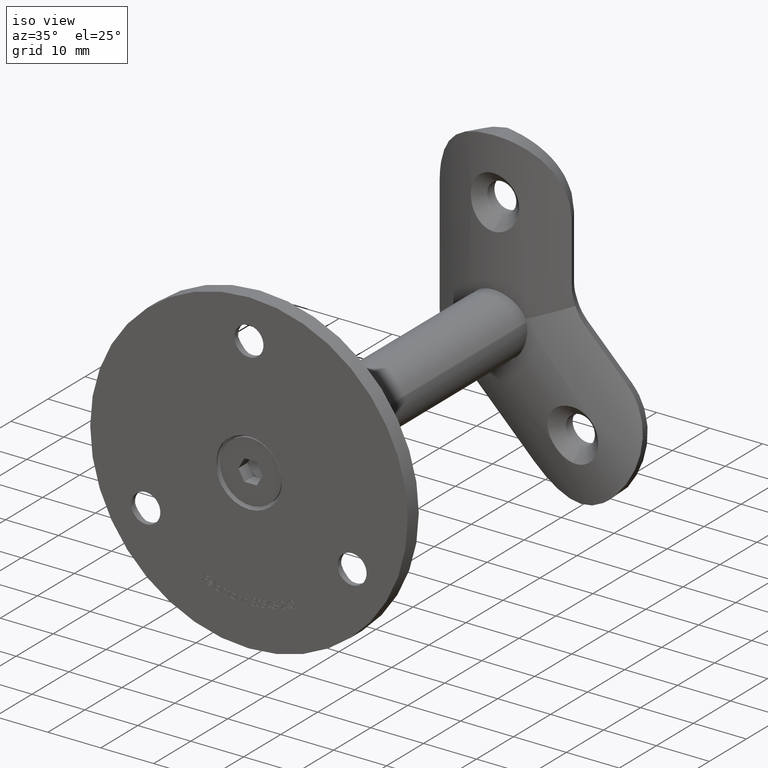
[diagram: clean part render]
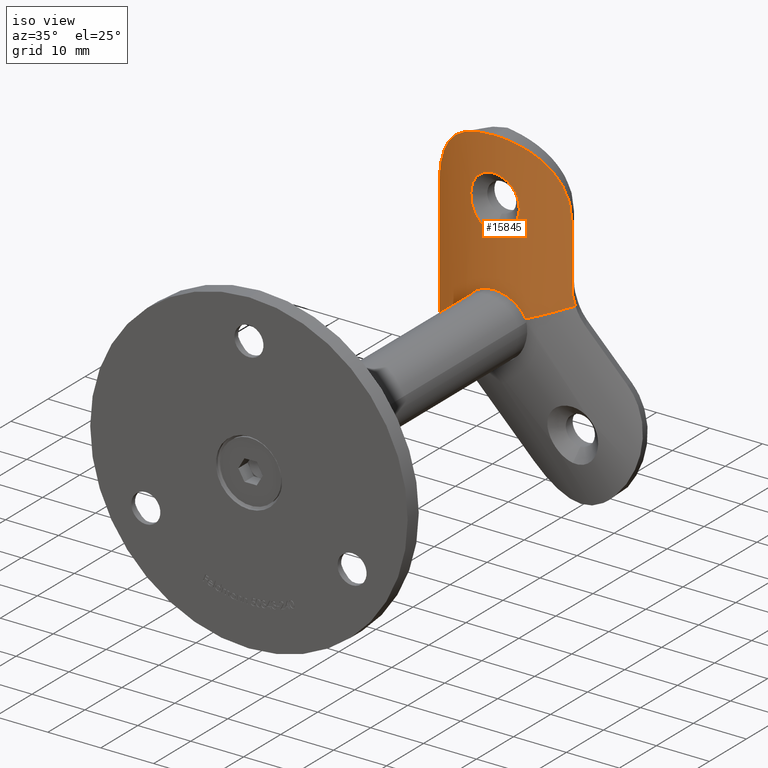
[diagram: same view with one face highlighted and labeled with its STEP entity id]
A machine part, iso view. The second image highlights one B-rep face of the part: STEP entity #15845.
In plain terms, the highlighted cylindrical surface (partial cylindrical patch) has radius 25.2 mm, axis along (0, 0, 1).
Its self-contained STEP definition (entity closure, byte-faithful):
#52 = CARTESIAN_POINT ( 'NONE',  ( 5.635665148318850000, 0.6382557961364526700, -30.16563106257295200 ) ) ;
#132 = CARTESIAN_POINT ( 'NONE',  ( 12.54201311457441800, 3.342578494631494500, -24.88051984420207700 ) ) ;
#320 = CARTESIAN_POINT ( 'NONE',  ( -3.520744840741779800, 0.2462778248378499600, -14.70954173135167200 ) ) ;
#453 = CARTESIAN_POINT ( 'NONE',  ( -2.876931050095497000, 0.1634943336296174100, -15.40049076243290700 ) ) ;
#508 = CARTESIAN_POINT ( 'NONE',  ( 4.580577123825221100, 0.4197999741863477900, -11.19258483337963200 ) ) ;
#520 = CARTESIAN_POINT ( 'NONE',  ( -4.143819402203336100, 0.3427941176002003400, -9.351696232464494300 ) ) ;
#847 = CARTESIAN_POINT ( 'NONE',  ( -1.085196124922591900, 0.02290744339777387900, -6.640102659356252900 ) ) ;
#856 = CARTESIAN_POINT ( 'NONE',  ( -3.100121005353015500, 0.1904473954815733800, -27.24064383884313400 ) ) ;
#885 = CARTESIAN_POINT ( 'NONE',  ( 12.42593213786106600, 3.275942108313401000, -10.81716259696245300 ) ) ;
#943 = CARTESIAN_POINT ( 'NONE',  ( 12.50000000000000200, 3.318729470161014400, -11.65131462300098000 ) ) ;
#957 = CARTESIAN_POINT ( 'NONE',  ( -12.50000000000000000, 3.318729470161013500, -12.50000000000001800 ) ) ;
#992 = EDGE_CURVE ( 'NONE', #6685, #10526, #17532, .T. ) ;
#1002 = ORIENTED_EDGE ( 'NONE', *, *, #12608, .T. ) ;
#1007 = CARTESIAN_POINT ( 'NONE',  ( 12.11489000487418000, 3.102822514503106100, -9.180283859318134200 ) ) ;
#1015 = CARTESIAN_POINT ( 'NONE',  ( -11.76157500785650900, 2.912500167473663900, -7.968663745774179600 ) ) ;
#1105 = CARTESIAN_POINT ( 'NONE',  ( -3.311148534074731300, 0.2176370511976729900, -27.37084989584277700 ) ) ;
#1135 = CARTESIAN_POINT ( 'NONE',  ( 11.89376168094891100, 2.983018977985725700, -8.374334854254618300 ) ) ;
#1145 = CARTESIAN_POINT ( 'NONE',  ( -2.916408096065322900, 0.1659191428603351000, -0.2704965400152910000 ) ) ;
#1228 = CARTESIAN_POINT ( 'NONE',  ( -6.092324201610737500, 0.7475231649378983900, -32.89484127377284000 ) ) ;
#1253 = CARTESIAN_POINT ( 'NONE',  ( 7.817128580942958000, 1.232221269887715300, -2.390605118497026300 ) ) ;
#1290 = CARTESIAN_POINT ( 'NONE',  ( -5.635665148318850900, 0.6382557961364526700, -34.83436893742705100 ) ) ;
#1322 = CARTESIAN_POINT ( 'NONE',  ( 10.07048743595559900, 2.098031901673115900, -4.710125348738568400 ) ) ;
#1385 = EDGE_CURVE ( 'NONE', #3648, #14641, #7338, .T. ) ;
#1823 = CARTESIAN_POINT ( 'NONE',  ( 2.109871521874010700, 0.08685697626282486200, -7.051801675040414900 ) ) ;
#1856 = CARTESIAN_POINT ( 'NONE',  ( 8.233888600642865500, 1.234415304853414100, -29.08941167054449300 ) ) ;
#1967 = CARTESIAN_POINT ( 'NONE',  ( -4.446939123987936800, 0.3954095641891077800, -12.73505331806743400 ) ) ;
#2025 = CARTESIAN_POINT ( 'NONE',  ( 4.579934869850817800, 0.4196812632571155200, -11.81855127310733300 ) ) ;
#2040 = CARTESIAN_POINT ( 'NONE',  ( -3.691772472108291000, 0.2713639326261404500, -8.528655425503567100 ) ) ;
#2085 = CARTESIAN_POINT ( 'NONE',  ( 3.511680899609918700, 0.2450151918517536900, -14.72098898458173400 ) ) ;
#2219 = CARTESIAN_POINT ( 'NONE',  ( 1.534176133914123300, 0.04630459537214132900, -16.21275156954238700 ) ) ;
#2249 = CARTESIAN_POINT ( 'NONE',  ( -12.00344084762930000, 3.042441293827857800, -37.47198799423127000 ) ) ;
#2312 = CARTESIAN_POINT ( 'NONE',  ( 12.50000000000000000, 3.318729470161013500, -23.72569594041010900 ) ) ;
#2379 = LINE ( 'NONE', #11363, #6150 ) ;
#2462 = CARTESIAN_POINT ( 'NONE',  ( -7.453320890116474500, 1.124781431170145000, -2.155752778854338500 ) ) ;
#2525 = CARTESIAN_POINT ( 'NONE',  ( -9.558277226690501400, 1.881457439786637500, -4.063074653246610900 ) ) ;
#2608 = CARTESIAN_POINT ( 'NONE',  ( -3.914547124021531900, 0.3051962721563678000, -27.81509600416223500 ) ) ;
#2639 = EDGE_LOOP ( 'NONE', ( #13903, #8296, #13031, #18285, #6737, #15644, #3350, #5086, #17451, #14998 ) ) ;
#2646 = CARTESIAN_POINT ( 'NONE',  ( -4.132401606780078400, 0.3377746668264500800, -0.5710017413947515700 ) ) ;
#2720 = VERTEX_POINT ( 'NONE', #17647 ) ;
#2863 = CARTESIAN_POINT ( 'NONE',  ( 7.452247982321925200E-016, -2.844418877042948600E-015, -26.39999999999999900 ) ) ;
#2952 = FACE_BOUND ( 'NONE', #17972, .T. ) ;
#3068 = VERTEX_POINT ( 'NONE', #15498 ) ;
#3092 = CARTESIAN_POINT ( 'NONE',  ( 10.70593280715455500, 2.231996734658619400, -28.06545743342151400 ) ) ;
#3128 = CARTESIAN_POINT ( 'NONE',  ( 2.345598967563117500, 0.1079385583510384800, -26.86110811641933800 ) ) ;
#3146 = CARTESIAN_POINT ( 'NONE',  ( 12.50000000000000200, 3.318729470161013900, -24.30715221525655100 ) ) ;
#3182 = DIRECTION ( 'NONE',  ( -0.0000000000000000000, -0.0000000000000000000, 1.000000000000000000 ) ) ;
#3183 = VERTEX_POINT ( 'NONE', #2312 ) ;
#3187 = FACE_OUTER_BOUND ( 'NONE', #2639, .T. ) ;
#3215 = CARTESIAN_POINT ( 'NONE',  ( 12.82785849635463600, 3.508482303909128900, -26.56954736917000700 ) ) ;
#3273 = CARTESIAN_POINT ( 'NONE',  ( -3.506772870722872700, 0.2443311937236158400, -8.272810619512702200 ) ) ;
#3350 = ORIENTED_EDGE ( 'NONE', *, *, #3647, .T. ) ;
#3461 = CARTESIAN_POINT ( 'NONE',  ( 4.446059415248537800, 0.3952511076181891600, -10.26096141582420500 ) ) ;
#3528 = CARTESIAN_POINT ( 'NONE',  ( 4.442457757354808300, 0.3946040462538625300, -12.75403916577031500 ) ) ;
#3647 = EDGE_CURVE ( 'NONE', #2720, #3183, #6513, .T. ) ;
#3648 = VERTEX_POINT ( 'NONE', #7754 ) ;
#3661 = CARTESIAN_POINT ( 'NONE',  ( 0.6288438543881429400, 0.007364689150935332600, -16.45535869399840900 ) ) ;
#3751 = DIRECTION ( 'NONE',  ( -0.0000000000000000000, -0.0000000000000000000, 1.000000000000000000 ) ) ;
#3846 = CARTESIAN_POINT ( 'NONE',  ( -12.50000000000000000, 3.318729470161013500, -34.66206479569979800 ) ) ;
#3864 = CARTESIAN_POINT ( 'NONE',  ( -5.656666835896313500, 0.6429325618814399900, -30.20352090361686900 ) ) ;
#3968 = CARTESIAN_POINT ( 'NONE',  ( -12.49999999999999800, 3.318729470161013900, -11.65131217574670200 ) ) ;
#3984 = CARTESIAN_POINT ( 'NONE',  ( 6.123233991512032600E-016, -3.201811514472621600E-015, -6.500000000000004400 ) ) ;
#4023 = CARTESIAN_POINT ( 'NONE',  ( 6.123233991512032600E-016, -3.201811514472621600E-015, -6.500000000000004400 ) ) ;
#4118 = CARTESIAN_POINT ( 'NONE',  ( -4.467781865359187400, 0.3963983958027402200, -28.31706517512223400 ) ) ;
#4152 = CARTESIAN_POINT ( 'NONE',  ( 3.336452648389693900, 0.2184905582897320700, -0.3602012633736843000 ) ) ;
#4159 = CARTESIAN_POINT ( 'NONE',  ( -10.95907355803569900, 2.502603160104170100, -6.077649395843182300 ) ) ;
#4224 = CARTESIAN_POINT ( 'NONE',  ( -9.290227986484300300, 1.773002913500467200, -3.759946391623413000 ) ) ;
#4313 = CARTESIAN_POINT ( 'NONE',  ( -6.104215035870024200, 0.7504888322355425200, -32.39572821635362500 ) ) ;
#4451 = CARTESIAN_POINT ( 'NONE',  ( 5.079101427205057600, 0.5166544394542881300, -29.10843895902831200 ) ) ;
#4607 = CARTESIAN_POINT ( 'NONE',  ( 12.70593178983226000, 3.437457290527091500, -26.01171874692852300 ) ) ;
#4626 = EDGE_CURVE ( 'NONE', #15193, #3068, #19100, .T. ) ;
#4657 = CARTESIAN_POINT ( 'NONE',  ( 2.064561520201300600, 0.08303970297215769500, -26.75204197358564800 ) ) ;
#4797 = CARTESIAN_POINT ( 'NONE',  ( -4.581024645818930100, 0.4198826913978697100, -11.79924024913036900 ) ) ;
#4970 = CARTESIAN_POINT ( 'NONE',  ( 3.516036829971829600, 0.2456316884475114600, -8.284682730837406700 ) ) ;
#5080 = CYLINDRICAL_SURFACE ( 'NONE', #17189, 25.20000000000000300 ) ;
#5086 = ORIENTED_EDGE ( 'NONE', *, *, #7140, .T. ) ;
#5235 = CARTESIAN_POINT ( 'NONE',  ( 2.372116897686227700, 0.1106584373789110400, -15.78662136201503000 ) ) ;
#5270 = CARTESIAN_POINT ( 'NONE',  ( -9.996264048482657900, 1.955090999565554500, -36.64058814194411400 ) ) ;
#5363 = CARTESIAN_POINT ( 'NONE',  ( -12.17039824450057300, 3.132887324638117500, -36.92277621301490600 ) ) ;
#5508 = CARTESIAN_POINT ( 'NONE',  ( -0.2516522207129910900, -5.322013886717174200E-015, -26.39999999999999500 ) ) ;
#5593 = CARTESIAN_POINT ( 'NONE',  ( 4.541713459850109700, 0.4095295967373566700, -0.7010748751101031400 ) ) ;
#5730 = CARTESIAN_POINT ( 'NONE',  ( -12.20537942593692200, 3.152873191993741400, -9.582092618962015300 ) ) ;
#6150 = VECTOR ( 'NONE', #3182, 1000.000000000000000 ) ;
#6241 = CARTESIAN_POINT ( 'NONE',  ( -4.366981934856971400, 0.3810318345296347400, -13.03690783631459000 ) ) ;
#6328 = CARTESIAN_POINT ( 'NONE',  ( 5.635665148318850000, 0.6382557961364526700, -30.16563106257295200 ) ) ;
#6361 = CARTESIAN_POINT ( 'NONE',  ( 1.242031994499226400, 0.02877491513886639600, -6.676278470152341900 ) ) ;
#6445 = CARTESIAN_POINT ( 'NONE',  ( -2.107101425442147400, 0.08664828582114228500, -15.94957611715271100 ) ) ;
#6510 = CARTESIAN_POINT ( 'NONE',  ( -0.6275273340601597000, 0.005950327279558812800, -16.46440452191917500 ) ) ;
#6513 = B_SPLINE_CURVE_WITH_KNOTS ( 'NONE', 3,
 ( #13240, #3215, #4607, #132, #3146, #13699 ),
 .UNSPECIFIED., .F., .F.,
 ( 4, 2, 4 ),
 ( 3.496446946337351300E-018, 0.001720416399516249700, 0.003440832799032496000 ),
 .UNSPECIFIED. ) ;
#6565 = CARTESIAN_POINT ( 'NONE',  ( 4.010664839313585100, 0.3206846524777262100, -13.93054130894079500 ) ) ;
#6685 = VERTEX_POINT ( 'NONE', #11071 ) ;
#6692 = CARTESIAN_POINT ( 'NONE',  ( 2.636376477397085100E-018, -2.985933416749475100E-015, -16.49999999999999600 ) ) ;
#6737 = ORIENTED_EDGE ( 'NONE', *, *, #16055, .F. ) ;
#6934 = DIRECTION ( 'NONE',  ( -0.0000000000000000000, -0.0000000000000000000, 1.000000000000000000 ) ) ;
#7024 = CARTESIAN_POINT ( 'NONE',  ( -0.9998213134970611600, 0.01862153161233626200, -26.47731666575877100 ) ) ;
#7027 = CARTESIAN_POINT ( 'NONE',  ( 2.426184253501165400E-015, 25.19999999999999900, -58.40618737384683400 ) ) ;
#7051 = CARTESIAN_POINT ( 'NONE',  ( 9.295514644333644900, 1.775107711457989400, -3.765742000863847600 ) ) ;
#7140 = EDGE_CURVE ( 'NONE', #3183, #3648, #2379, .T. ) ;
#7176 = CARTESIAN_POINT ( 'NONE',  ( 2.353543754483576900E-016, 0.0000000000000000000, 0.0000000000000000000 ) ) ;
#7338 = B_SPLINE_CURVE_WITH_KNOTS ( 'NONE', 3,
 ( #8254, #943, #885, #17452, #1007, #1135, #17518, #11568, #11826, #12992, #1322, #10069, #7051, #10198, #1253, #19103, #16165, #5593, #13119, #4152, #8820, #16225, #19168, #7176 ),
 .UNSPECIFIED., .F., .F.,
 ( 4, 2, 2, 2, 2, 2, 2, 2, 2, 2, 2, 4 ),
 ( 1.748223473168675600E-017, 0.002510071529770218600, 0.003765107294655316800, 0.005020143059540415500, 0.007530214589310611100, 0.008785250354195712300, 0.01004028611908081400, 0.01255035764885101300, 0.01506042917862121200, 0.01631546494350631300, 0.01757050070839141400, 0.02008057223816161300 ),
 .UNSPECIFIED. ) ;
#7478 = CARTESIAN_POINT ( 'NONE',  ( 3.143541254798092300, 0.1955773873269544300, -27.26380823111926300 ) ) ;
#7523 = EDGE_CURVE ( 'NONE', #14048, #2720, #10950, .T. ) ;
#7600 = CARTESIAN_POINT ( 'NONE',  ( 5.521370367631699400, 0.6120309846244096400, -29.88969905292957200 ) ) ;
#7712 = CARTESIAN_POINT ( 'NONE',  ( 5.635665148318850000, 0.6382557961364526700, -30.16563106257295200 ) ) ;
#7748 = CARTESIAN_POINT ( 'NONE',  ( -4.579459079541297100, 0.4195933210834877400, -11.17360016113208800 ) ) ;
#7754 = CARTESIAN_POINT ( 'NONE',  ( 12.50000000000000000, 3.318729470161013500, -12.50000000000001800 ) ) ;
#7815 = CARTESIAN_POINT ( 'NONE',  ( -3.105360998503838400, 0.1911889987196645800, -15.18514913609685200 ) ) ;
#7927 = CARTESIAN_POINT ( 'NONE',  ( 0.3136521761264384800, -5.243698632135616700E-015, -6.499999999999997300 ) ) ;
#7930 = EDGE_CURVE ( 'NONE', #19361, #10333, #14139, .T. ) ;
#8008 = CARTESIAN_POINT ( 'NONE',  ( -4.554259075932573200, 0.4148895800308853900, -12.11671145761856000 ) ) ;
#8254 = CARTESIAN_POINT ( 'NONE',  ( 12.50000000000000000, 3.318729470161013500, -12.50000000000001800 ) ) ;
#8296 = ORIENTED_EDGE ( 'NONE', *, *, #16426, .T. ) ;
#8352 = CARTESIAN_POINT ( 'NONE',  ( -5.334716248579559800, 0.5708717033161387900, -29.53138462035829200 ) ) ;
#8384 = CARTESIAN_POINT ( 'NONE',  ( -0.8478801698460424200, 8.004461351553138200E-017, 0.0000000000000000000 ) ) ;
#8577 = CARTESIAN_POINT ( 'NONE',  ( -8.722036700537685800, 1.555579847960163000, -3.184195363687085700 ) ) ;
#8705 = CARTESIAN_POINT ( 'NONE',  ( -11.89084499406092900, 2.981453070570951400, -8.364683429127939700 ) ) ;
#8820 = CARTESIAN_POINT ( 'NONE',  ( 2.924802006616160200, 0.1668656466313037100, -0.2720974402485542600 ) ) ;
#8858 = CARTESIAN_POINT ( 'NONE',  ( 3.879866014261077500, 0.2994630704261139800, -27.78347287138400600 ) ) ;
#8992 = CARTESIAN_POINT ( 'NONE',  ( 1.196677446337125700, 0.02174751055778854900, -26.48803642177563600 ) ) ;
#9123 = CARTESIAN_POINT ( 'NONE',  ( 4.526458254105580000, 0.4091099976557364700, -28.39999685798055800 ) ) ;
#9127 = B_SPLINE_CURVE_WITH_KNOTS ( 'NONE', 3,
 ( #9984, #5508, #16006, #7024, #16068, #19009, #10043, #856, #1105, #11598, #2608, #4118, #15822, #17301, #8352, #12847, #3864, #18819, #11361, #9858, #4313, #1228, #16390, #11862, #16196, #1290 ),
 .UNSPECIFIED., .F., .F.,
 ( 4, 2, 2, 2, 2, 2, 2, 2, 2, 2, 2, 2, 4 ),
 ( 0.01621000710305283600, 0.01695732460670127900, 0.01770464211034972200, 0.01919927711764661200, 0.01994659462129505500, 0.02069391212494349800, 0.02218854713224038800, 0.02293586463588882800, 0.02368318213953727100, 0.02517781714683414000, 0.02592513465048258000, 0.02667245215413101300, 0.02816708716142790600 ),
 .UNSPECIFIED. ) ;
#9269 = CARTESIAN_POINT ( 'NONE',  ( -1.240064652826072400, 0.02866373981490495700, -16.32441649811534000 ) ) ;
#9318 = CARTESIAN_POINT ( 'NONE',  ( 1.540370647827714800, 0.04550201978173213500, -6.780533895811026400 ) ) ;
#9444 = CARTESIAN_POINT ( 'NONE',  ( 3.698650068046577900, 0.2723823201091884500, -8.538657644134907800 ) ) ;
#9510 = CARTESIAN_POINT ( 'NONE',  ( 4.554057407836973300, 0.4148517643294690700, -10.88105408612482500 ) ) ;
#9521 = CARTESIAN_POINT ( 'NONE',  ( -12.50000000000000000, 3.318729470161013500, -34.08103499973749700 ) ) ;
#9523 = CARTESIAN_POINT ( 'NONE',  ( -4.359078734938461400, 0.3796382761915548200, -9.936971936891014300 ) ) ;
#9713 = CARTESIAN_POINT ( 'NONE',  ( 1.237379091273920700, 0.02995864319753509600, -16.31610108667474500 ) ) ;
#9839 = CARTESIAN_POINT ( 'NONE',  ( 1.681501041465626400, 0.05576029605887737600, -16.15216525595209500 ) ) ;
#9849 = CARTESIAN_POINT ( 'NONE',  ( -1.238249759580967600, 0.03000319505332077100, -6.684178535170345500 ) ) ;
#9858 = CARTESIAN_POINT ( 'NONE',  ( -6.094874311800977800, 0.7481463099860434800, -32.14685376744815000 ) ) ;
#9899 = CARTESIAN_POINT ( 'NONE',  ( 0.1581188901261451900, -5.013776244342037000E-015, -16.49999999999999600 ) ) ;
#9957 = CARTESIAN_POINT ( 'NONE',  ( -7.787817432499702300, 1.231228431433072600, -2.397319878443243900 ) ) ;
#9984 = CARTESIAN_POINT ( 'NONE',  ( 7.452247982321925200E-016, -2.844418877042948600E-015, -26.39999999999999900 ) ) ;
#10024 = CARTESIAN_POINT ( 'NONE',  ( -12.00344084762930000, 3.042441293827857800, -37.47198799423127000 ) ) ;
#10043 = CARTESIAN_POINT ( 'NONE',  ( -2.443963947661151900, 0.1149262084690399800, -26.88899740389905800 ) ) ;
#10069 = CARTESIAN_POINT ( 'NONE',  ( 9.563864885048385400, 1.883736669989527300, -4.069526909974207700 ) ) ;
#10198 = CARTESIAN_POINT ( 'NONE',  ( 8.444955973289221900, 1.449391512206032100, -2.902564333401197200 ) ) ;
#10206 = CARTESIAN_POINT ( 'NONE',  ( -12.11344641061551300, 3.102026373778727500, -9.174062328137159400 ) ) ;
#10333 = VERTEX_POINT ( 'NONE', #11078 ) ;
#10501 = CARTESIAN_POINT ( 'NONE',  ( 4.321558359304638100, 0.3723091485169476300, -28.18454848356362100 ) ) ;
#10526 = VERTEX_POINT ( 'NONE', #4023 ) ;
#10837 = CARTESIAN_POINT ( 'NONE',  ( -3.096281249215418400, 0.1900838873627747600, -7.806200207680188200 ) ) ;
#10927 = CARTESIAN_POINT ( 'NONE',  ( -12.00344084762930000, 3.042441293827857800, -37.47198799423127000 ) ) ;
#10950 =( BOUNDED_CURVE ( )  B_SPLINE_CURVE ( 3, ( #6328, #1856, #3092, #13644 ),
 .UNSPECIFIED., .F., .F. ) 
 B_SPLINE_CURVE_WITH_KNOTS ( ( 4, 4 ),
 ( 4.937933892279138700, 5.253961654218155500 ),
 .UNSPECIFIED. ) 
 CURVE ( )  GEOMETRIC_REPRESENTATION_ITEM ( )  RATIONAL_B_SPLINE_CURVE ( ( 1.000000000000000000, 0.9916945072986413900, 0.9916945072986413900, 1.000000000000000000 ) ) 
 REPRESENTATION_ITEM ( '' )  );
#10963 = CARTESIAN_POINT ( 'NONE',  ( -4.153653337573322400, 0.3444397373693350300, -13.62583049966721100 ) ) ;
#11028 = CARTESIAN_POINT ( 'NONE',  ( -4.010965166420103100, 0.3207267268685279900, -9.069808586357012800 ) ) ;
#11071 = CARTESIAN_POINT ( 'NONE',  ( 2.636376477397085100E-018, -2.985933416749475100E-015, -16.49999999999999600 ) ) ;
#11078 = CARTESIAN_POINT ( 'NONE',  ( -12.50000000000000000, 3.318729470161013500, -12.50000000000001800 ) ) ;
#11083 = CARTESIAN_POINT ( 'NONE',  ( 3.693410336405263700, 0.2716128740405990300, -14.46872637440531900 ) ) ;
#11331 = CARTESIAN_POINT ( 'NONE',  ( -12.50000000000000000, 3.318729470161013500, -58.40618737384683400 ) ) ;
#11361 = CARTESIAN_POINT ( 'NONE',  ( -6.021113560012636000, 0.7298394260390286300, -31.40226959124754200 ) ) ;
#11363 = CARTESIAN_POINT ( 'NONE',  ( 12.50000000000000000, 3.318729470161013500, -58.40618737384683400 ) ) ;
#11463 = CARTESIAN_POINT ( 'NONE',  ( -12.29337713910773300, 3.201776704961949900, -36.36536798215657000 ) ) ;
#11568 = CARTESIAN_POINT ( 'NONE',  ( 11.32367428727380300, 2.685033447932416300, -6.815258891685196800 ) ) ;
#11598 = CARTESIAN_POINT ( 'NONE',  ( -3.717808321473821100, 0.2749109448897543700, -27.65750201957075300 ) ) ;
#11640 = CARTESIAN_POINT ( 'NONE',  ( -5.692894525373621800, 0.6387905260006590000, -1.132260018870920000 ) ) ;
#11826 = CARTESIAN_POINT ( 'NONE',  ( 10.96168210474422900, 2.503936689799164400, -6.083208287748629300 ) ) ;
#11862 = CARTESIAN_POINT ( 'NONE',  ( -5.959991287668584500, 0.7148146870861175100, -33.89356119355660000 ) ) ;
#11866 = CARTESIAN_POINT ( 'NONE',  ( 4.904633094764262700, 0.4811483753747888300, -28.86084840979755500 ) ) ;
#11930 = CARTESIAN_POINT ( 'NONE',  ( 5.387315763708680400, 0.5820868424790290900, -29.62305953058299600 ) ) ;
#12323 = CARTESIAN_POINT ( 'NONE',  ( 0.6318291017219829200, 0.006072006645742310800, -6.536335746895499500 ) ) ;
#12453 = CARTESIAN_POINT ( 'NONE',  ( 4.018167344994403800, 0.3218877985429419200, -9.083751481257063900 ) ) ;
#12515 = CARTESIAN_POINT ( 'NONE',  ( 4.552013918938960100, 0.4144746146103833700, -12.13607044124458100 ) ) ;
#12528 = CARTESIAN_POINT ( 'NONE',  ( -1.541805822372429400, 0.04561379116459162600, -16.21872403141027200 ) ) ;
#12551 = CARTESIAN_POINT ( 'NONE',  ( -5.635665148318850900, 0.6382557961364526700, -34.83436893742705100 ) ) ;
#12581 = CARTESIAN_POINT ( 'NONE',  ( 2.867409036279082700, 0.1624289508582798200, -15.40851115333669500 ) ) ;
#12608 = EDGE_CURVE ( 'NONE', #10526, #6685, #16924, .T. ) ;
#12690 = EDGE_CURVE ( 'NONE', #14641, #10333, #13425, .T. ) ;
#12791 = DIRECTION ( 'NONE',  ( 1.000000000000000000, 0.0000000000000000000, 0.0000000000000000000 ) ) ;
#12847 = CARTESIAN_POINT ( 'NONE',  ( -5.558710979782108400, 0.6204578897282488900, -29.97559770077076300 ) ) ;
#12942 = CARTESIAN_POINT ( 'NONE',  ( -3.324103600918450600, 0.2168591484662161200, -0.3573870589013311000 ) ) ;
#12992 = CARTESIAN_POINT ( 'NONE',  ( 10.30840557189280900, 2.203604289978435400, -5.047045322774975400 ) ) ;
#13031 = ORIENTED_EDGE ( 'NONE', *, *, #4626, .T. ) ;
#13119 = CARTESIAN_POINT ( 'NONE',  ( 4.146472128489391700, 0.3401025917469536800, -0.5751845204073293700 ) ) ;
#13132 = CARTESIAN_POINT ( 'NONE',  ( -8.421896575752356300, 1.446605107155329200, -2.911573044353796800 ) ) ;
#13240 = CARTESIAN_POINT ( 'NONE',  ( 12.99020313251005600, 3.606143869699276900, -27.11928168453285800 ) ) ;
#13425 = B_SPLINE_CURVE_WITH_KNOTS ( 'NONE', 3,
 ( #15861, #8384, #16110, #1145, #12942, #2646, #14522, #11640, #18984, #2462, #9957, #13132, #8577, #4224, #2525, #15986, #17465, #4159, #17654, #1015, #8705, #10206, #5730, #14705, #3968, #957 ),
 .UNSPECIFIED., .F., .F.,
 ( 4, 2, 2, 2, 2, 2, 2, 2, 2, 2, 2, 2, 4 ),
 ( 2.323517928748123800E-019, 0.002511189484768549100, 0.003766784227152823000, 0.005022378969537098300, 0.007533568454305646100, 0.008789163196689922200, 0.01004475793907419700, 0.01130035268145847100, 0.01255594742384274500, 0.01506713690861129600, 0.01632273165099557000, 0.01757832639337984400, 0.02008951587814839300 ),
 .UNSPECIFIED. ) ;
#13644 = CARTESIAN_POINT ( 'NONE',  ( 12.99020313251005600, 3.606143869699276900, -27.11928168453285800 ) ) ;
#13699 = CARTESIAN_POINT ( 'NONE',  ( 12.50000000000000000, 3.318729470161013500, -23.72569594041010900 ) ) ;
#13763 = CARTESIAN_POINT ( 'NONE',  ( -2.869441074184514700, 0.1626306818897115000, -7.592926030651458500 ) ) ;
#13903 = ORIENTED_EDGE ( 'NONE', *, *, #7930, .F. ) ;
#13942 = CARTESIAN_POINT ( 'NONE',  ( 4.150572468418261900, 0.3439241483465081400, -9.367144229627875500 ) ) ;
#14008 = CARTESIAN_POINT ( 'NONE',  ( 4.361451042679843400, 0.3800556006663131100, -13.05531645399418600 ) ) ;
#14021 = CARTESIAN_POINT ( 'NONE',  ( -3.703135803341900600, 0.2730599147105124400, -14.45433408985830100 ) ) ;
#14048 = VERTEX_POINT ( 'NONE', #7712 ) ;
#14075 = CARTESIAN_POINT ( 'NONE',  ( 3.099726237830535700, 0.1905044679805692500, -15.19049275528095000 ) ) ;
#14089 = CARTESIAN_POINT ( 'NONE',  ( -1.534459409287574700, 0.04632360967134502300, -6.787370722369038500 ) ) ;
#14139 = LINE ( 'NONE', #11331, #17180 ) ;
#14332 = CARTESIAN_POINT ( 'NONE',  ( -12.45819384839377800, 3.294695718649904000, -35.23501442404391800 ) ) ;
#14393 = CARTESIAN_POINT ( 'NONE',  ( 2.107142759500193500, 0.08663914252252401200, -15.94965038978547700 ) ) ;
#14522 = CARTESIAN_POINT ( 'NONE',  ( -4.532594862703384700, 0.4078419951737383100, -0.6979657696664037800 ) ) ;
#14641 = VERTEX_POINT ( 'NONE', #16964 ) ;
#14705 = CARTESIAN_POINT ( 'NONE',  ( -12.42592989374907700, 3.275935231960217300, -10.81590602781534300 ) ) ;
#14998 = ORIENTED_EDGE ( 'NONE', *, *, #12690, .T. ) ;
#15132 = CARTESIAN_POINT ( 'NONE',  ( 0.6049546006593331500, -5.360024490225212500E-015, -26.39999999999999900 ) ) ;
#15159 = VERTEX_POINT ( 'NONE', #18892 ) ;
#15193 = VERTEX_POINT ( 'NONE', #10927 ) ;
#15211 = CARTESIAN_POINT ( 'NONE',  ( -0.3163219591210662500, -4.968959966389741200E-015, -16.49999999999999600 ) ) ;
#15329 = CARTESIAN_POINT ( 'NONE',  ( 2.873429332263222900, 0.1631080795977195300, -7.596618839967953300 ) ) ;
#15498 = CARTESIAN_POINT ( 'NONE',  ( -5.635665148318850900, 0.6382557961364526700, -34.83436893742705100 ) ) ;
#15530 = CARTESIAN_POINT ( 'NONE',  ( 4.146451335356743200, 0.3432335870647276200, -13.64238021018300100 ) ) ;
#15594 = CARTESIAN_POINT ( 'NONE',  ( 2.375937302443590600, 0.1110088864403972200, -7.215771574522108300 ) ) ;
#15644 = ORIENTED_EDGE ( 'NONE', *, *, #7523, .T. ) ;
#15733 = CARTESIAN_POINT ( 'NONE',  ( 0.9368415813404066300, 0.01604019391614585100, -16.40255074871351600 ) ) ;
#15799 = CARTESIAN_POINT ( 'NONE',  ( 0.3170109908600270400, 0.001511503062037265900, -16.49089253720669400 ) ) ;
#15822 = CARTESIAN_POINT ( 'NONE',  ( -4.791022952305645800, 0.4580013870391257400, -28.69141387339247000 ) ) ;
#15845 = ADVANCED_FACE ( 'NONE', ( #3187, #2952 ), #5080, .T. ) ;
#15861 = CARTESIAN_POINT ( 'NONE',  ( 2.353543754483576900E-016, 0.0000000000000000000, 0.0000000000000000000 ) ) ;
#15926 = CARTESIAN_POINT ( 'NONE',  ( -12.50000000000000000, 3.318729470161013500, -34.08103499973749700 ) ) ;
#15986 = CARTESIAN_POINT ( 'NONE',  ( -10.06309240960431400, 2.094821752894520100, -4.700177235646672000 ) ) ;
#16006 = CARTESIAN_POINT ( 'NONE',  ( -0.5042025431321309800, 0.003824813623002543900, -26.41574680022525000 ) ) ;
#16055 = EDGE_CURVE ( 'NONE', #14048, #15159, #16681, .T. ) ;
#16068 = CARTESIAN_POINT ( 'NONE',  ( -1.244547728441422800, 0.02958659874728671700, -26.52311177842639400 ) ) ;
#16110 = CARTESIAN_POINT ( 'NONE',  ( -1.683288038060003000, 0.04271271461624141800, -0.06458577593599675000 ) ) ;
#16165 = CARTESIAN_POINT ( 'NONE',  ( 5.698461715680557500, 0.6401573714198712800, -1.134961145442713800 ) ) ;
#16196 = CARTESIAN_POINT ( 'NONE',  ( -5.826785456716944400, 0.6821081403443917100, -34.37296369684744200 ) ) ;
#16225 = CARTESIAN_POINT ( 'NONE',  ( 1.685795824113163600, 0.04275011520024039200, -0.06461064261555886400 ) ) ;
#16390 = CARTESIAN_POINT ( 'NONE',  ( -6.070866186611655600, 0.7421580524065831700, -33.14649901900417500 ) ) ;
#16426 = EDGE_CURVE ( 'NONE', #19361, #15193, #19320, .T. ) ;
#16456 = CARTESIAN_POINT ( 'NONE',  ( 3.640975359513418200, 0.2631537630519756300, -27.59664866723502600 ) ) ;
#16681 = B_SPLINE_CURVE_WITH_KNOTS ( 'NONE', 3,
 ( #52, #7600, #11930, #4451, #11866, #9123, #10501, #8858, #16456, #7478, #17951, #3128, #4657, #8992, #15132, #2863 ),
 .UNSPECIFIED., .F., .F.,
 ( 4, 2, 2, 2, 2, 2, 2, 4 ),
 ( 0.009024007937943426600, 0.009922257833582102900, 0.01082050772922077900, 0.01171875762485945600, 0.01261700752049813000, 0.01351525741613680800, 0.01441350731177548300, 0.01621000710305283600 ),
 .UNSPECIFIED. ) ;
#16785 = CARTESIAN_POINT ( 'NONE',  ( -2.367970664963961800, 0.1102357647677813500, -7.210327941857372900 ) ) ;
#16831 = CARTESIAN_POINT ( 'NONE',  ( 3.104840828036608900, 0.1911420442497958100, -7.814645151367640700 ) ) ;
#16841 = EDGE_CURVE ( 'NONE', #15159, #3068, #9127, .T. ) ;
#16850 = CARTESIAN_POINT ( 'NONE',  ( 2.636376477397085100E-018, -2.985933416749475100E-015, -16.49999999999999600 ) ) ;
#16901 = CARTESIAN_POINT ( 'NONE',  ( 6.123233991512032600E-016, -3.201811514472621600E-015, -6.500000000000004400 ) ) ;
#16924 = B_SPLINE_CURVE_WITH_KNOTS ( 'NONE', 3,
 ( #16901, #7927, #12323, #6361, #9318, #1823, #15594, #15329, #16831, #4970, #9444, #12453, #13942, #18470, #3461, #9510, #508, #2025, #12515, #3528, #14008, #15530, #6565, #11083, #2085, #14075, #12581, #5235, #14393, #9839, #2219, #9713, #15733, #3661, #15799, #9899, #6692 ),
 .UNSPECIFIED., .F., .F.,
 ( 4, 2, 2, 2, 2, 2, 2, 2, 2, 2, 2, 2, 2, 2, 2, 2, 1, 2, 4 ),
 ( 0.01122896594228338200, 0.01216991706075024600, 0.01311086817921711100, 0.01405181929768397500, 0.01499277041615084000, 0.01593372153461770600, 0.01687467265308456900, 0.01781562377155143700, 0.01875657489001830000, 0.01969752600848516700, 0.02063847712695203500, 0.02157942824541889800, 0.02252037936388576500, 0.02346133048235263300, 0.02440228160081949600, 0.02487275716005292500, 0.02534323271928635600, 0.02581370827851978800, 0.02628418383775321700 ),
 .UNSPECIFIED. ) ;
#16964 = CARTESIAN_POINT ( 'NONE',  ( 2.353543754483576900E-016, 0.0000000000000000000, 0.0000000000000000000 ) ) ;
#16978 = CARTESIAN_POINT ( 'NONE',  ( -4.019090372919618100, 0.3220485295129378300, -13.91401836304363600 ) ) ;
#17003 = CARTESIAN_POINT ( 'NONE',  ( -7.860628817210622000, 1.148771258758871400, -35.75597906486943600 ) ) ;
#17180 = VECTOR ( 'NONE', #6934, 1000.000000000000000 ) ;
#17189 = AXIS2_PLACEMENT_3D ( 'NONE', #7027, #3751, #12791 ) ;
#17301 = CARTESIAN_POINT ( 'NONE',  ( -5.207644062519629600, 0.5435496798216430400, -29.31366187898541000 ) ) ;
#17451 = ORIENTED_EDGE ( 'NONE', *, *, #1385, .T. ) ;
#17452 = CARTESIAN_POINT ( 'NONE',  ( 12.20634323637394100, 3.153408182237853900, -9.586866491389527000 ) ) ;
#17465 = CARTESIAN_POINT ( 'NONE',  ( -10.30097175845451400, 2.200255219436450200, -5.035979534829856200 ) ) ;
#17518 = CARTESIAN_POINT ( 'NONE',  ( 11.76378122751854100, 2.913663809806475300, -7.975013328668149300 ) ) ;
#17532 = B_SPLINE_CURVE_WITH_KNOTS ( 'NONE', 3,
 ( #16850, #15211, #6510, #9269, #12528, #6445, #18413, #453, #7815, #320, #14021, #16978, #10963, #6241, #1967, #8008, #4797, #7748, #18483, #18226, #9523, #520, #11028, #2040, #3273, #10837, #13763, #16785, #18288, #17851, #14089, #9849, #847, #18870, #18932, #3984 ),
 .UNSPECIFIED., .F., .F.,
 ( 4, 2, 2, 2, 2, 2, 2, 2, 2, 2, 2, 2, 2, 2, 2, 2, 2, 4 ),
 ( 0.02628418383775321700, 0.02722538542661189600, 0.02816658701547057300, 0.02910778860432925200, 0.03004899019318793200, 0.03099019178204661500, 0.03193139337090529500, 0.03287259495976397500, 0.03381379654862265400, 0.03475499813748134100, 0.03569619972634002100, 0.03663740131519870000, 0.03757860290405738700, 0.03851980449291606000, 0.03946100608177474700, 0.03993160687620408300, 0.04040220767063342600, 0.04134340925949210600 ),
 .UNSPECIFIED. ) ;
#17647 = CARTESIAN_POINT ( 'NONE',  ( 12.99020313251005600, 3.606143869699276900, -27.11928168453285800 ) ) ;
#17654 = CARTESIAN_POINT ( 'NONE',  ( -11.32172105132729300, 2.684054222904230300, -6.811195175884418700 ) ) ;
#17759 = ORIENTED_EDGE ( 'NONE', *, *, #992, .T. ) ;
#17851 = CARTESIAN_POINT ( 'NONE',  ( -1.678705501920632900, 0.05558094393974558100, -6.846685985296187700 ) ) ;
#17951 = CARTESIAN_POINT ( 'NONE',  ( 2.884455913119500900, 0.1641597705731138400, -27.11679925354674500 ) ) ;
#17972 = EDGE_LOOP ( 'NONE', ( #17759, #1002 ) ) ;
#18226 = CARTESIAN_POINT ( 'NONE',  ( -4.441899252362317100, 0.3945035574532645400, -10.24348611750053300 ) ) ;
#18285 = ORIENTED_EDGE ( 'NONE', *, *, #16841, .F. ) ;
#18288 = CARTESIAN_POINT ( 'NONE',  ( -2.100398288245551200, 0.08610395923178373900, -7.046785874342456100 ) ) ;
#18413 = CARTESIAN_POINT ( 'NONE',  ( -2.376291328770316000, 0.1110265700246140800, -15.78416550961929100 ) ) ;
#18470 = CARTESIAN_POINT ( 'NONE',  ( 4.364328734593980700, 0.3805642035291049200, -9.954327010469372200 ) ) ;
#18483 = CARTESIAN_POINT ( 'NONE',  ( -4.551868163880557800, 0.4144473745694685100, -10.86243610360714700 ) ) ;
#18819 = CARTESIAN_POINT ( 'NONE',  ( -5.908643840485415100, 0.7018839218844873400, -30.90478474928638900 ) ) ;
#18870 = CARTESIAN_POINT ( 'NONE',  ( -0.6242499670225887300, 0.005856376694986315800, -6.535023423468923700 ) ) ;
#18892 = CARTESIAN_POINT ( 'NONE',  ( 7.452247982321925200E-016, -2.844418877042948600E-015, -26.39999999999999900 ) ) ;
#18932 = CARTESIAN_POINT ( 'NONE',  ( -0.3137356667370619900, -5.166900978251232900E-015, -6.499999999999999100 ) ) ;
#18984 = CARTESIAN_POINT ( 'NONE',  ( -6.423044354949029300, 0.8217911460611420100, -1.494929067280323900 ) ) ;
#19009 = CARTESIAN_POINT ( 'NONE',  ( -1.969567581385747800, 0.07242067178620260900, -26.70524625298277900 ) ) ;
#19100 =( BOUNDED_CURVE ( )  B_SPLINE_CURVE ( 3, ( #2249, #5270, #17003, #12551 ),
 .UNSPECIFIED., .F., .F. ) 
 B_SPLINE_CURVE_WITH_KNOTS ( ( 4, 4 ),
 ( 4.215916334774724400, 4.486844068490240600 ),
 .UNSPECIFIED. ) 
 CURVE ( )  GEOMETRIC_REPRESENTATION_ITEM ( )  RATIONAL_B_SPLINE_CURVE ( ( 1.000000000000000000, 0.9938925284098651900, 0.9938925284098651900, 1.000000000000000000 ) ) 
 REPRESENTATION_ITEM ( '' )  );
#19103 = CARTESIAN_POINT ( 'NONE',  ( 6.431193674020083700, 0.8237479412059299800, -1.498682162706848700 ) ) ;
#19168 = CARTESIAN_POINT ( 'NONE',  ( 0.8482355912717838300, -1.370311079113623900E-016, 1.050320854595332400E-016 ) ) ;
#19320 = B_SPLINE_CURVE_WITH_KNOTS ( 'NONE', 3,
 ( #15926, #3846, #14332, #11463, #5363, #10024 ),
 .UNSPECIFIED., .F., .F.,
 ( 4, 2, 4 ),
 ( 7.165583942981723800E-018, 0.001719118113965050200, 0.003438236227930093500 ),
 .UNSPECIFIED. ) ;
#19361 = VERTEX_POINT ( 'NONE', #9521 ) ;